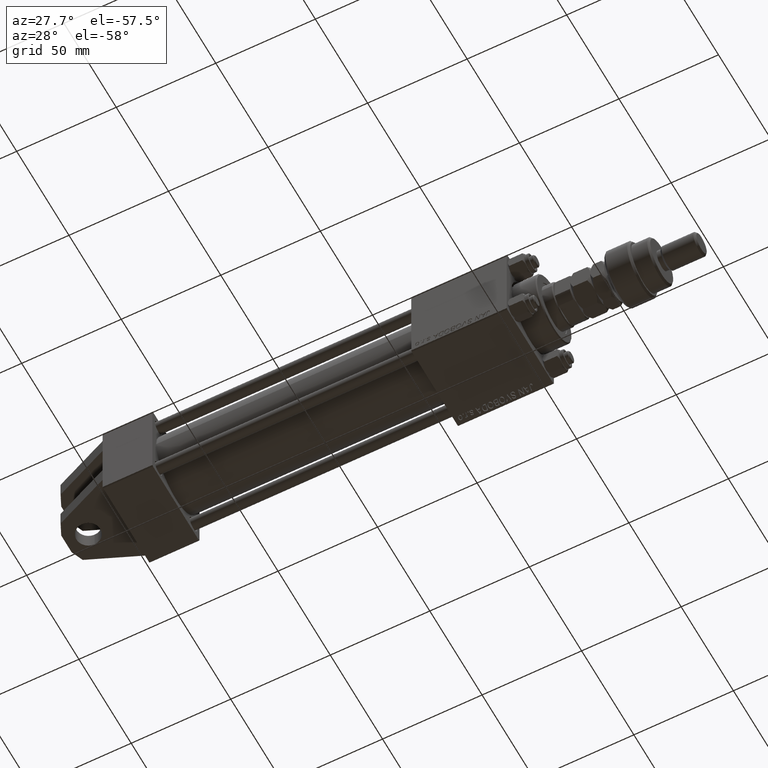
[diagram: clean part render]
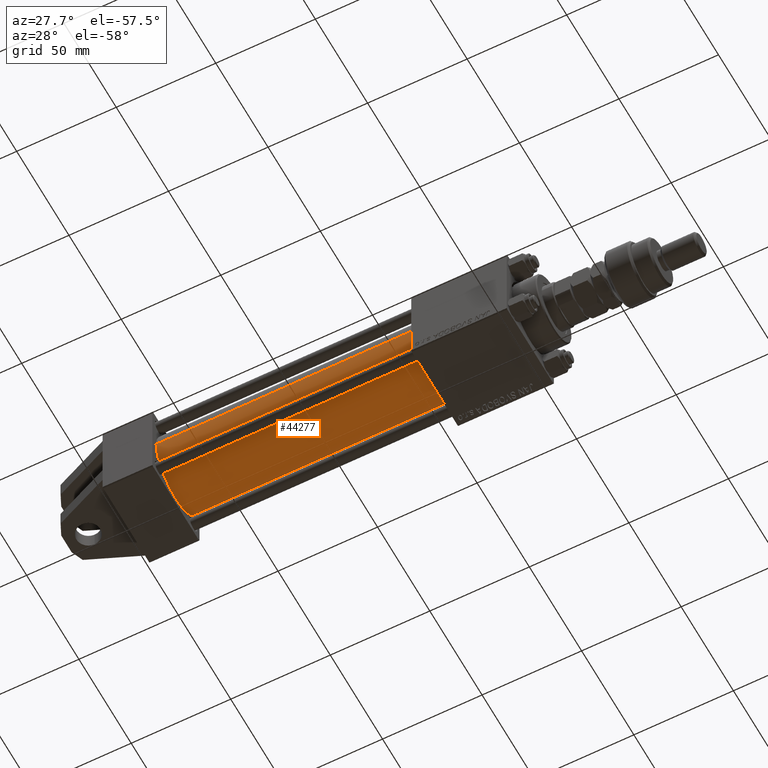
[diagram: same view with one face highlighted and labeled with its STEP entity id]
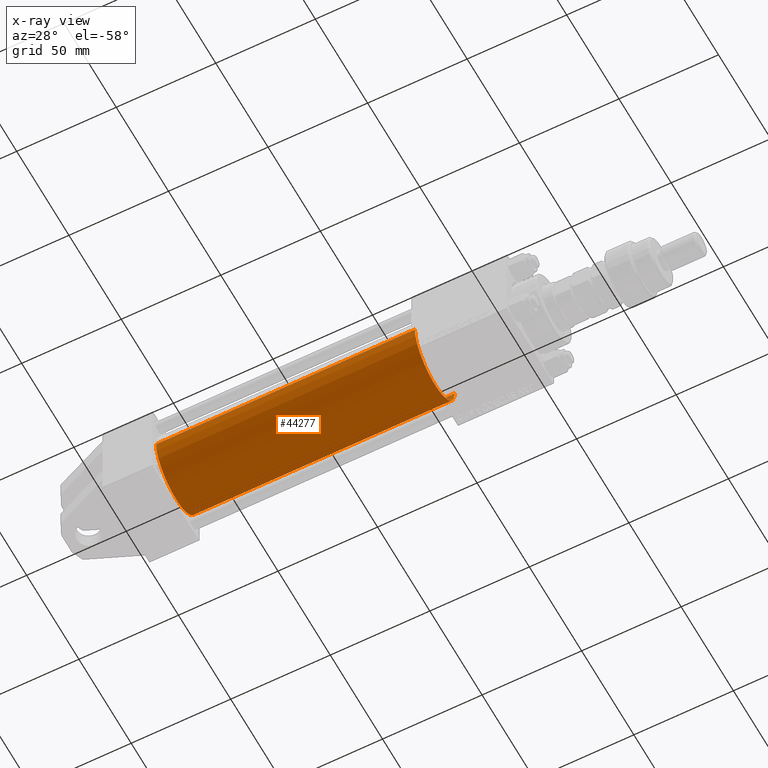
[diagram: x-ray of the same camera — body ghosted, the highlighted face saturated]
A machine part, auxiliary view. The second image highlights one B-rep face of the part: STEP entity #44277.
The next image is the same camera in x-ray: the body ghosted, the highlighted face saturated — about 0% of this face is hidden behind the body in this view.
In plain terms, the highlighted cylindrical surface (partial cylindrical patch) has radius 19 mm, axis along (-1, -0, 0).
Its self-contained STEP definition (entity closure, byte-faithful):
#1604 = DIRECTION ( 'NONE',  ( 1.000000000000000000, -0.000000000000000000, 0.000000000000000000 ) ) ;
#2431 = DIRECTION ( 'NONE',  ( 0.000000000000000000, 0.000000000000000000, 1.000000000000000000 ) ) ;
#3470 = FACE_OUTER_BOUND ( 'NONE', #25652, .T. ) ;
#4796 = EDGE_CURVE ( 'NONE', #29985, #5307, #25592, .T. ) ;
#5307 = VERTEX_POINT ( 'NONE', #11184 ) ;
#7190 = DIRECTION ( 'NONE',  ( -1.000000000000000000, -0.000000000000000000, -0.000000000000000000 ) ) ;
#9504 = CARTESIAN_POINT ( 'NONE',  ( 155.0000000000000000, -1.142618033573643218E-15, -19.00000000000000000 ) ) ;
#9999 = VECTOR ( 'NONE', #37785, 1000.000000000000000 ) ;
#11169 = CARTESIAN_POINT ( 'NONE',  ( 155.0000000000000000, -3.469446951953614189E-15, 0.000000000000000000 ) ) ;
#11184 = CARTESIAN_POINT ( 'NONE',  ( 24.99999999999999289, -1.142618033573643218E-15, -19.00000000000000000 ) ) ;
#12359 = CIRCLE ( 'NONE', #25077, 19.00000000000000000 ) ;
#13414 = ORIENTED_EDGE ( 'NONE', *, *, #24543, .F. ) ;
#14983 = VECTOR ( 'NONE', #33844, 1000.000000000000000 ) ;
#15657 = DIRECTION ( 'NONE',  ( 1.000000000000000000, 0.000000000000000000, 0.000000000000000000 ) ) ;
#16795 = EDGE_CURVE ( 'NONE', #5307, #17130, #12359, .T. ) ;
#17130 = VERTEX_POINT ( 'NONE', #31982 ) ;
#19814 = VERTEX_POINT ( 'NONE', #25622 ) ;
#21444 = EDGE_CURVE ( 'NONE', #29985, #19814, #48157, .T. ) ;
#24543 = EDGE_CURVE ( 'NONE', #19814, #17130, #30073, .T. ) ;
#25077 = AXIS2_PLACEMENT_3D ( 'NONE', #34273, #1604, #46748 ) ;
#25232 = AXIS2_PLACEMENT_3D ( 'NONE', #36127, #15657, #51535 ) ;
#25592 = LINE ( 'NONE', #50030, #14983 ) ;
#25622 = CARTESIAN_POINT ( 'NONE',  ( 155.0000000000000000, -3.469446951953614189E-15, 19.00000000000000000 ) ) ;
#25652 = EDGE_LOOP ( 'NONE', ( #36643, #30054, #25962, #13414 ) ) ;
#25962 = ORIENTED_EDGE ( 'NONE', *, *, #16795, .T. ) ;
#29985 = VERTEX_POINT ( 'NONE', #9504 ) ;
#30054 = ORIENTED_EDGE ( 'NONE', *, *, #4796, .T. ) ;
#30073 = LINE ( 'NONE', #37275, #9999 ) ;
#31098 = CYLINDRICAL_SURFACE ( 'NONE', #31766, 19.00000000000000000 ) ;
#31766 = AXIS2_PLACEMENT_3D ( 'NONE', #11169, #7190, #2431 ) ;
#31982 = CARTESIAN_POINT ( 'NONE',  ( 24.99999999999999289, -3.469446951953614189E-15, 19.00000000000000000 ) ) ;
#33844 = DIRECTION ( 'NONE',  ( -1.000000000000000000, -0.000000000000000000, -0.000000000000000000 ) ) ;
#34273 = CARTESIAN_POINT ( 'NONE',  ( 24.99999999999999289, -3.469446951953614189E-15, 0.000000000000000000 ) ) ;
#36127 = CARTESIAN_POINT ( 'NONE',  ( 155.0000000000000000, -3.469446951953614189E-15, 0.000000000000000000 ) ) ;
#36643 = ORIENTED_EDGE ( 'NONE', *, *, #21444, .F. ) ;
#37275 = CARTESIAN_POINT ( 'NONE',  ( 155.0000000000000000, -3.469446951953614189E-15, 19.00000000000000000 ) ) ;
#37785 = DIRECTION ( 'NONE',  ( -1.000000000000000000, -0.000000000000000000, -0.000000000000000000 ) ) ;
#44277 = ADVANCED_FACE ( 'NONE', ( #3470 ), #31098, .T. ) ;
#46748 = DIRECTION ( 'NONE',  ( 0.000000000000000000, 0.000000000000000000, 1.000000000000000000 ) ) ;
#48157 = CIRCLE ( 'NONE', #25232, 19.00000000000000000 ) ;
#50030 = CARTESIAN_POINT ( 'NONE',  ( 155.0000000000000000, -1.142618033573643218E-15, -19.00000000000000000 ) ) ;
#51535 = DIRECTION ( 'NONE',  ( 0.000000000000000000, 0.000000000000000000, -1.000000000000000000 ) ) ;